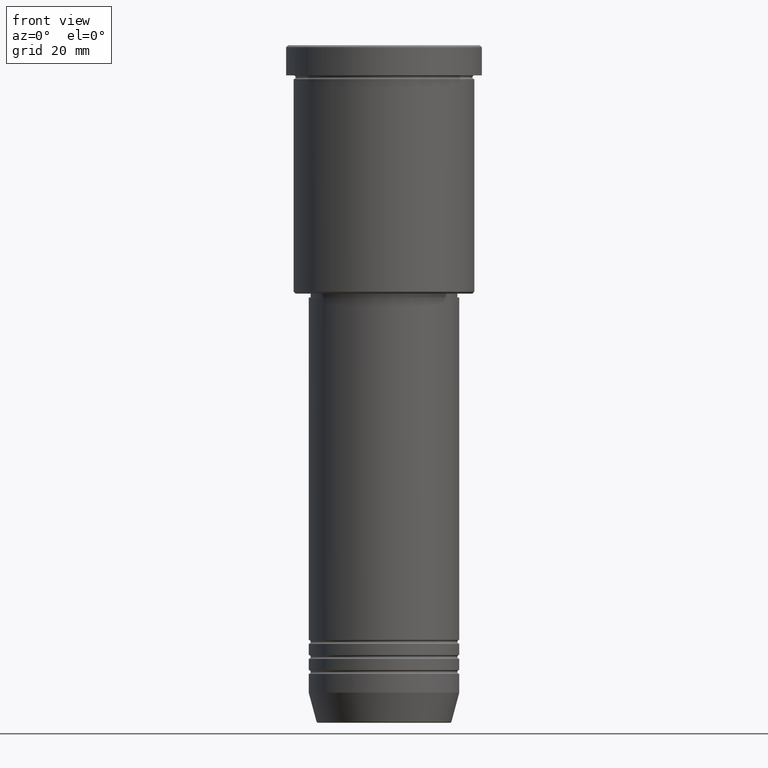
[diagram: clean part render]
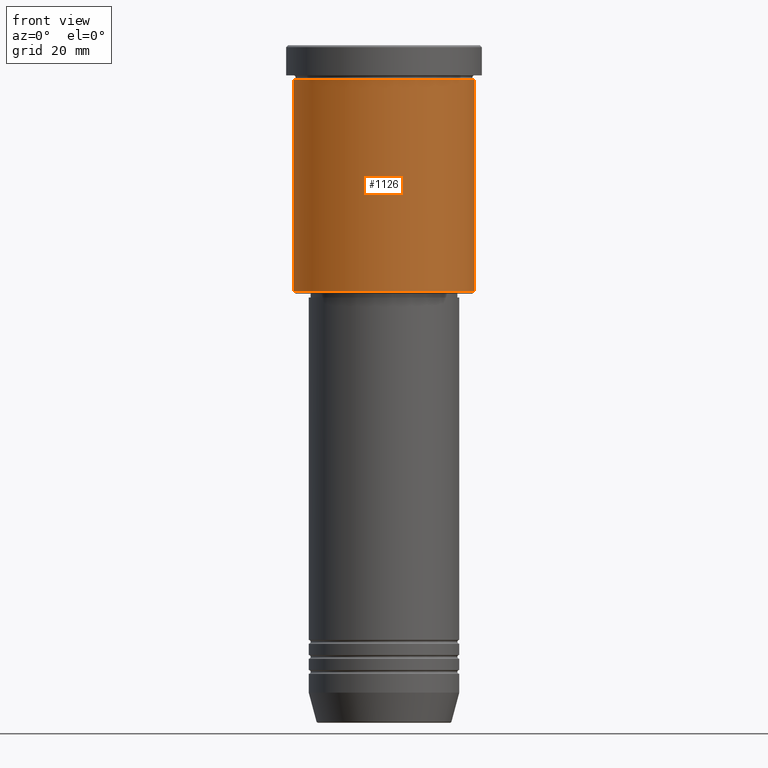
[diagram: same view with one face highlighted and labeled with its STEP entity id]
A machine part, front view. The second image highlights one B-rep face of the part: STEP entity #1126.
In plain terms, the highlighted cylindrical surface (partial cylindrical patch) has radius 24 mm, axis along (-0, -0, 1).
Its self-contained STEP definition (entity closure, byte-faithful):
#14 = CARTESIAN_POINT ( 'NONE',  ( 0.000000000000000000, 0.000000000000000000, -8.999999999999994671 ) ) ;
#26 = EDGE_LOOP ( 'NONE', ( #1041, #513, #1130, #941 ) ) ;
#38 = LINE ( 'NONE', #1127, #89 ) ;
#61 = DIRECTION ( 'NONE',  ( -1.000000000000000000, 0.000000000000000000, 0.000000000000000000 ) ) ;
#62 = CARTESIAN_POINT ( 'NONE',  ( 24.00000000000000000, 0.000000000000000000, -65.49999999999998579 ) ) ;
#69 = AXIS2_PLACEMENT_3D ( 'NONE', #14, #731, #79 ) ;
#73 = CARTESIAN_POINT ( 'NONE',  ( -24.00000000000000000, 2.939152317953647894E-15, 0.000000000000000000 ) ) ;
#79 = DIRECTION ( 'NONE',  ( 1.000000000000000000, 0.000000000000000000, 0.000000000000000000 ) ) ;
#89 = VECTOR ( 'NONE', #1040, 1000.000000000000000 ) ;
#235 = VECTOR ( 'NONE', #794, 1000.000000000000000 ) ;
#348 = CARTESIAN_POINT ( 'NONE',  ( 0.000000000000000000, 0.000000000000000000, 0.000000000000000000 ) ) ;
#377 = EDGE_CURVE ( 'NONE', #929, #863, #705, .T. ) ;
#423 = CYLINDRICAL_SURFACE ( 'NONE', #1074, 24.00000000000000000 ) ;
#431 = CARTESIAN_POINT ( 'NONE',  ( 0.000000000000000000, 0.000000000000000000, -65.49999999999998579 ) ) ;
#470 = CARTESIAN_POINT ( 'NONE',  ( -24.00000000000000000, 2.939152317953647894E-15, -8.999999999999994671 ) ) ;
#513 = ORIENTED_EDGE ( 'NONE', *, *, #696, .T. ) ;
#531 = DIRECTION ( 'NONE',  ( -0.000000000000000000, -0.000000000000000000, 1.000000000000000000 ) ) ;
#590 = CARTESIAN_POINT ( 'NONE',  ( -24.00000000000000000, 2.939152317953647894E-15, -65.49999999999998579 ) ) ;
#613 = AXIS2_PLACEMENT_3D ( 'NONE', #431, #531, #61 ) ;
#655 = CARTESIAN_POINT ( 'NONE',  ( 24.00000000000000000, 0.000000000000000000, -8.999999999999994671 ) ) ;
#689 = DIRECTION ( 'NONE',  ( -0.000000000000000000, -0.000000000000000000, 1.000000000000000000 ) ) ;
#696 = EDGE_CURVE ( 'NONE', #929, #1128, #1158, .T. ) ;
#705 = LINE ( 'NONE', #73, #235 ) ;
#731 = DIRECTION ( 'NONE',  ( -0.000000000000000000, -0.000000000000000000, 1.000000000000000000 ) ) ;
#794 = DIRECTION ( 'NONE',  ( -0.000000000000000000, -0.000000000000000000, 1.000000000000000000 ) ) ;
#802 = CIRCLE ( 'NONE', #69, 24.00000000000000000 ) ;
#804 = FACE_OUTER_BOUND ( 'NONE', #26, .T. ) ;
#820 = EDGE_CURVE ( 'NONE', #863, #873, #802, .T. ) ;
#863 = VERTEX_POINT ( 'NONE', #470 ) ;
#873 = VERTEX_POINT ( 'NONE', #655 ) ;
#886 = DIRECTION ( 'NONE',  ( 1.000000000000000000, 0.000000000000000000, 0.000000000000000000 ) ) ;
#929 = VERTEX_POINT ( 'NONE', #590 ) ;
#941 = ORIENTED_EDGE ( 'NONE', *, *, #820, .F. ) ;
#961 = EDGE_CURVE ( 'NONE', #1128, #873, #38, .T. ) ;
#1040 = DIRECTION ( 'NONE',  ( -0.000000000000000000, -0.000000000000000000, 1.000000000000000000 ) ) ;
#1041 = ORIENTED_EDGE ( 'NONE', *, *, #377, .F. ) ;
#1074 = AXIS2_PLACEMENT_3D ( 'NONE', #348, #689, #886 ) ;
#1126 = ADVANCED_FACE ( 'NONE', ( #804 ), #423, .T. ) ;
#1127 = CARTESIAN_POINT ( 'NONE',  ( 24.00000000000000000, 0.000000000000000000, 0.000000000000000000 ) ) ;
#1128 = VERTEX_POINT ( 'NONE', #62 ) ;
#1130 = ORIENTED_EDGE ( 'NONE', *, *, #961, .T. ) ;
#1158 = CIRCLE ( 'NONE', #613, 24.00000000000000000 ) ;